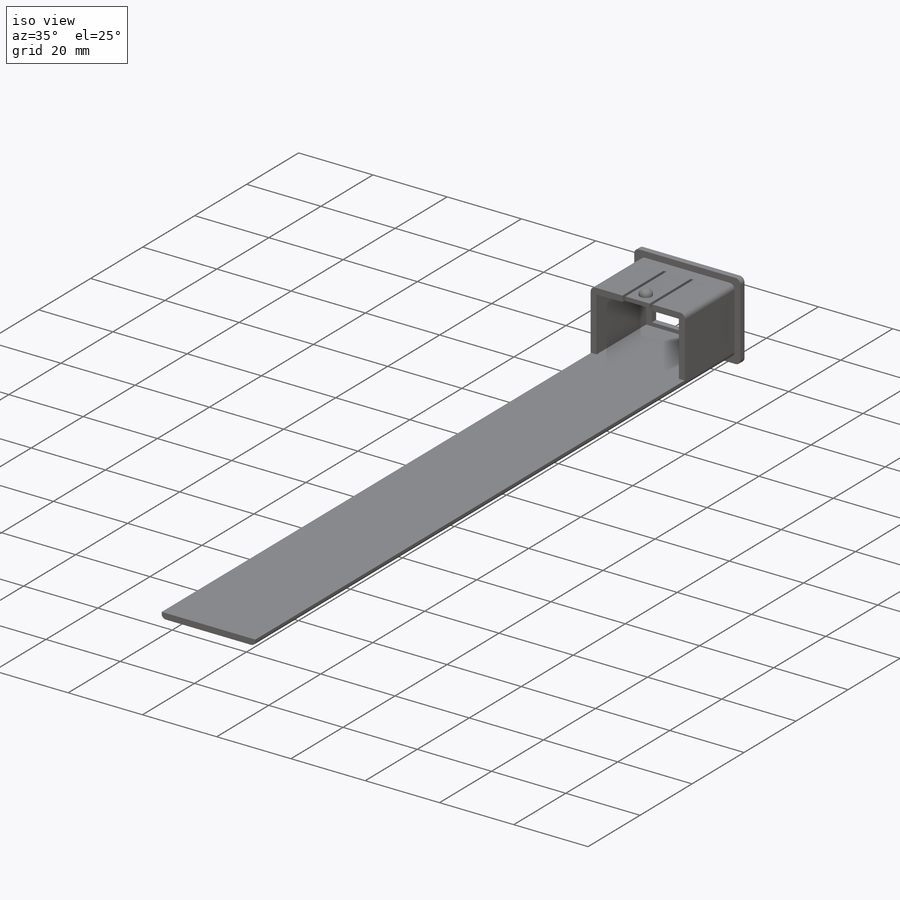
[diagram: iso view]
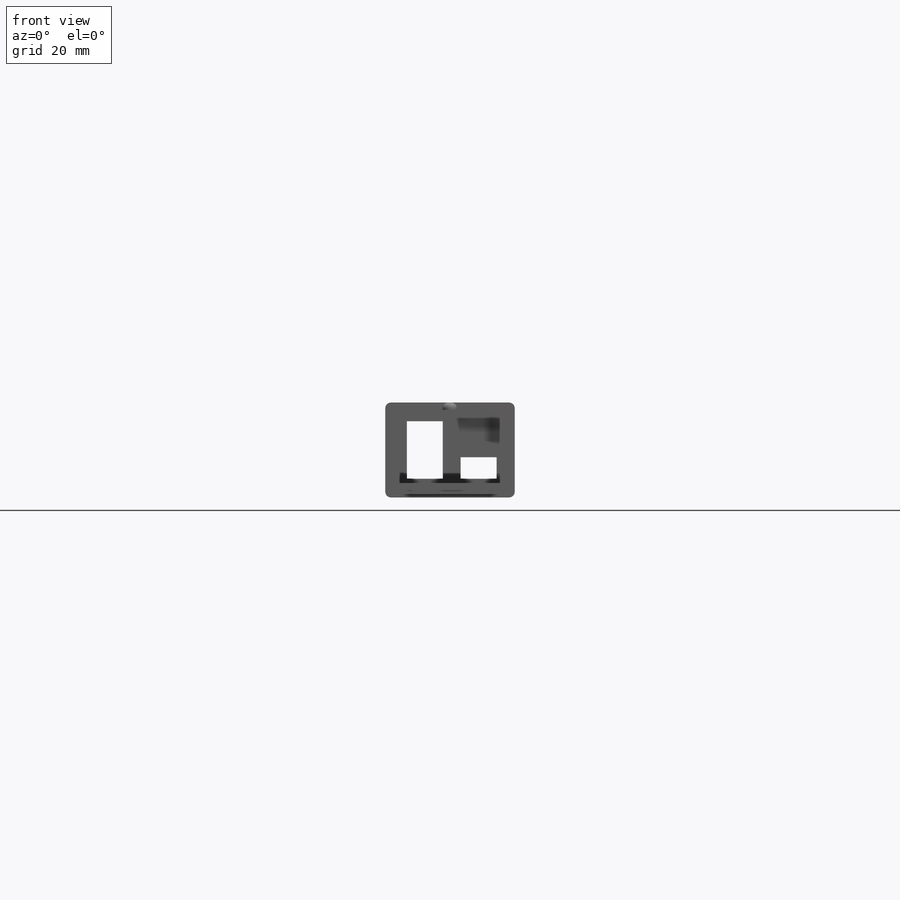
[diagram: front view]
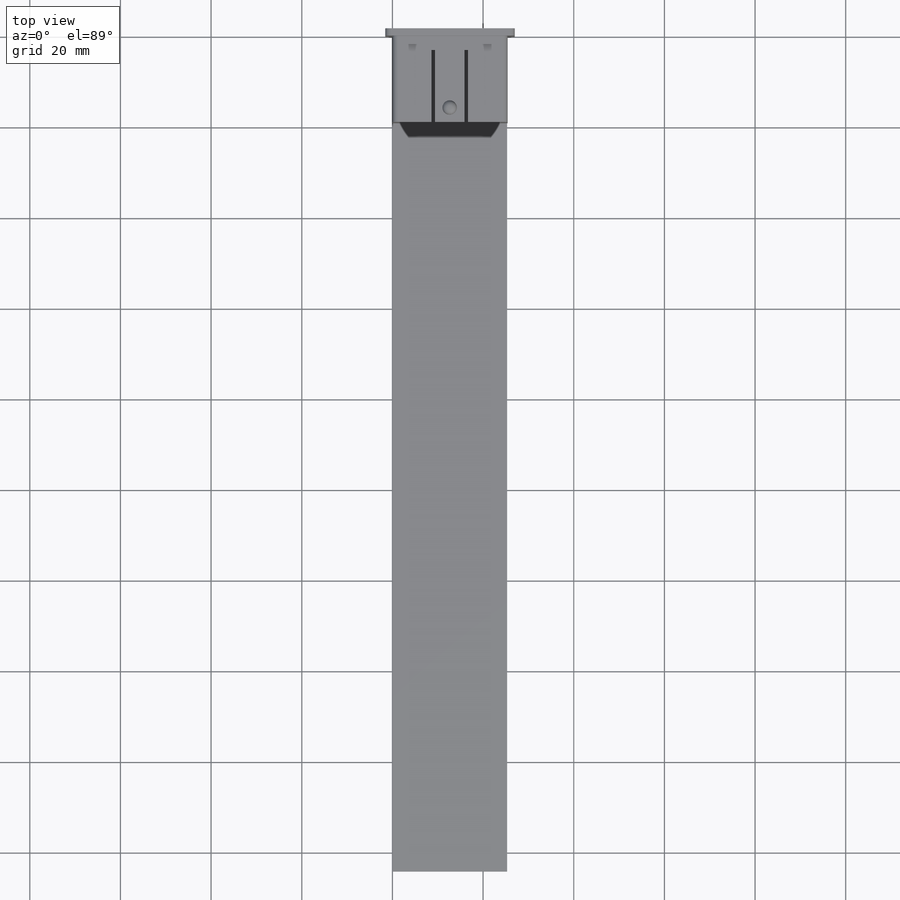
[diagram: top view]
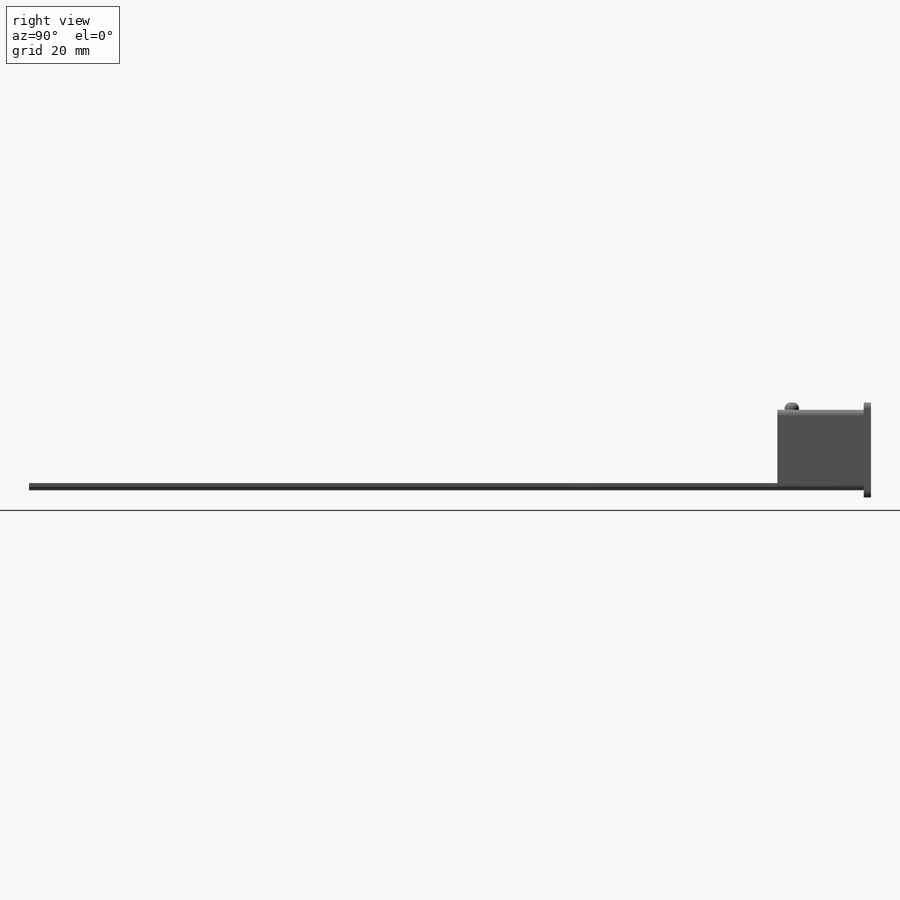
[diagram: right view]
SOLIDWORKS PART (.sldprt)
format: sldprt  version: not decoded by parser v0  size: 360,448 bytes
history: native  units: mm
features: sketch x12, fillet x9, extrude x6, cut_extrude x6, material x1 (+13 scaffold rows collapsed)
feature tree (47):
  scaffold x13  (default folders/planes/origin — collapsed)
  material  "Material <not specified>"
  sketch  "Sketch1"  dims[D1=25.4mm D2=17.78mm]
  extrude  "Boss-Extrude1"  Depth=19.05mm
  sketch  "Sketch2"  dims[D1=~0.79375mm]
  extrude  "Boss-Extrude2"  Depth=165.1mm
  sketch  "Sketch3"  dims[D1=1.5875mm]
  extrude  "Boss-Extrude3"  Depth=1.5875mm
  sketch  "Sketch4"  dims[D1=1.5875mm]
  cut_extrude  "Cut-Extrude1"  Depth=19.05mm
  sketch  "Sketch5"  dims[D1=7.9375mm D2=12.7mm D3=7.9375mm]
  cut_extrude  "Cut-Extrude2"  Depth=1.5875mm
  sketch  "Sketch8"  dims[D1=4.7625mm]
  cut_extrude  "Cut-Extrude3"  Depth=1.5875mm
  fillet  "Fillet9"  Radius=1.27mm
  fillet  "Fillet10"  Radius=1.27mm
  fillet  "Fillet11"  Radius=1.27mm
  fillet  "Fillet12"  Radius=1.27mm
  fillet  "Fillet13"  Radius=1.27mm
  fillet  "Fillet14"  Radius=1.27mm
  fillet  "Fillet15"  Radius=1.27mm
  fillet  "Fillet16"  Radius=1.27mm
  sketch  "Sketch9"  dims[D1=15.875mm D2=~0.79375mm]
  cut_extrude  "Cut-Extrude5"  Depth=1.5875mm
  sketch  "Sketch11"  dims[D1=~0.79375mm]
  cut_extrude  "Cut-Extrude6"  Depth=1.5875mm
  sketch  "Sketch12"
  cut_extrude  "Cut-Extrude7"  Depth=15.875mm
  sketch  "Sketch13"  dims[D1=3.175mm]
  extrude  "Boss-Extrude5"  Depth=1.5875mm
  fillet  "Fillet22"  Radius=1.27mm
  sketch  "Sketch17"
  extrude  "Boss-Extrude6"  Depth=0.79375mm
  sketch  "Sketch18"
  extrude  "Boss-Extrude7"  Depth=0.79375mm
decode coverage: 30 of 33 modeling features carry decoded parameters
note: ~ marks probable driven/reference dimensions
note: suppression state not decoded; provenance and decode notes live in map.json
